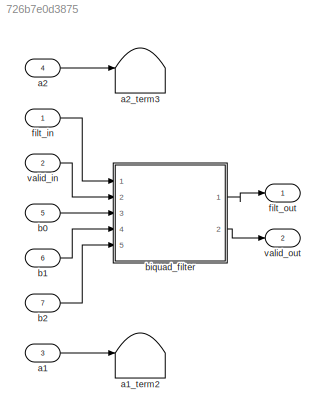
MODEL slx_726b7e0d3875
KIND model
CONFIG AbsTol = auto
CONFIG EnableMultiTasking = off
CONFIG FixedStep = auto
CONFIG MaxStep = auto
CONFIG MinStep = auto
CONFIG PreLoadFcn = addpath('<userpath>\Documents\MATLAB\hdlimport\biquad_filter');\n
CONFIG RelTol = 1e-3
CONFIG SampleTimeConstraint = Unconstrained
CONFIG SolverName = FixedStepDiscrete
CONFIG StartTime = 0.0
CONFIG StopTime = 10.0
BLOCK [Inport] a1
  OutDataTypeStr = uint16
  Port = 3
  SampleTime = -1
BLOCK [Terminator] a1_term2
BLOCK [Inport] a2
  OutDataTypeStr = uint16
  Port = 4
  SampleTime = -1
BLOCK [Terminator] a2_term3
BLOCK [Inport] b0
  OutDataTypeStr = uint16
  Port = 5
  SampleTime = -1
BLOCK [Inport] b1
  OutDataTypeStr = uint16
  Port = 6
  SampleTime = -1
BLOCK [Inport] b2
  OutDataTypeStr = uint16
  Port = 7
  SampleTime = -1
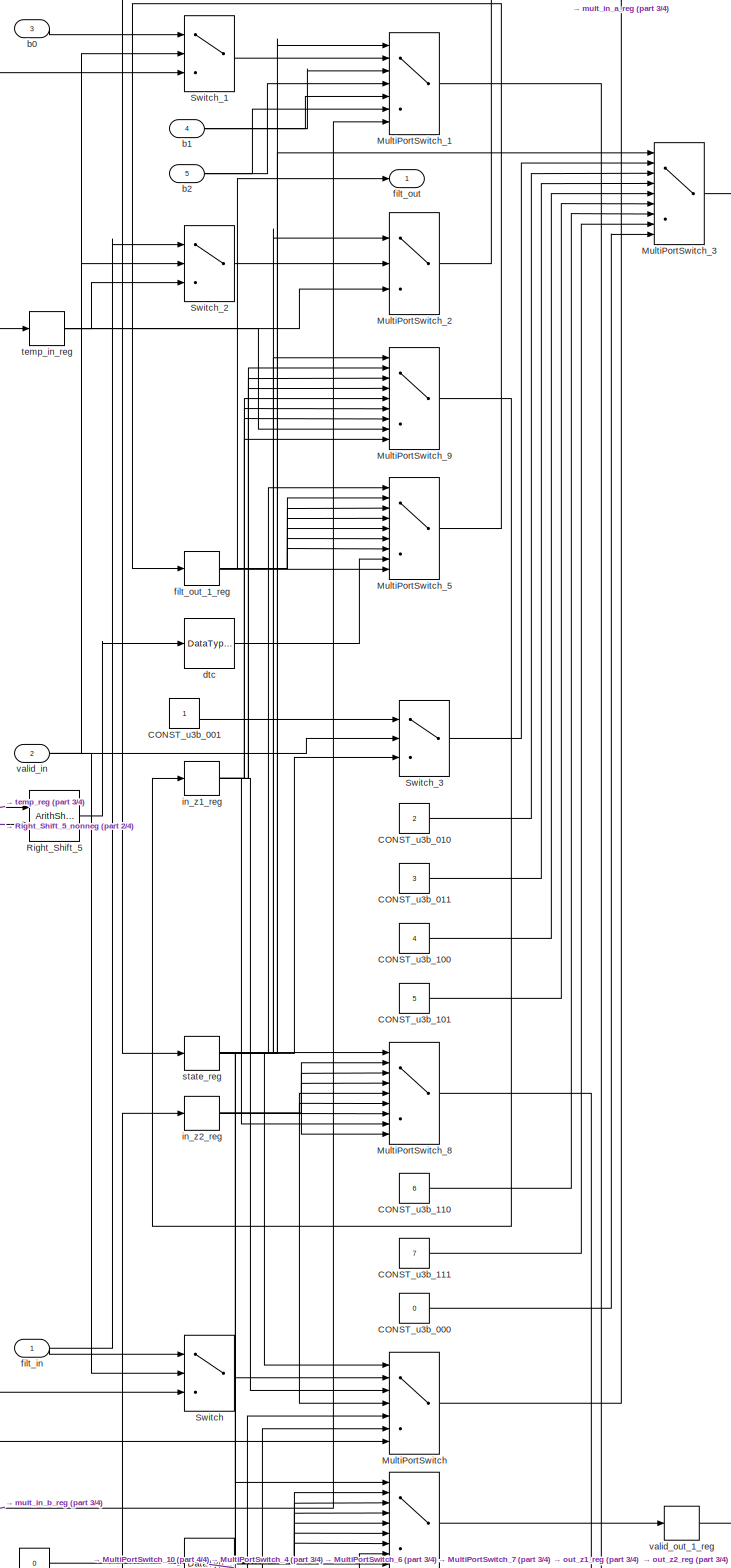
[diagram: biquad_filter - part 1/4, top center region]
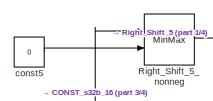
[diagram: biquad_filter - part 2/4, middle left region]
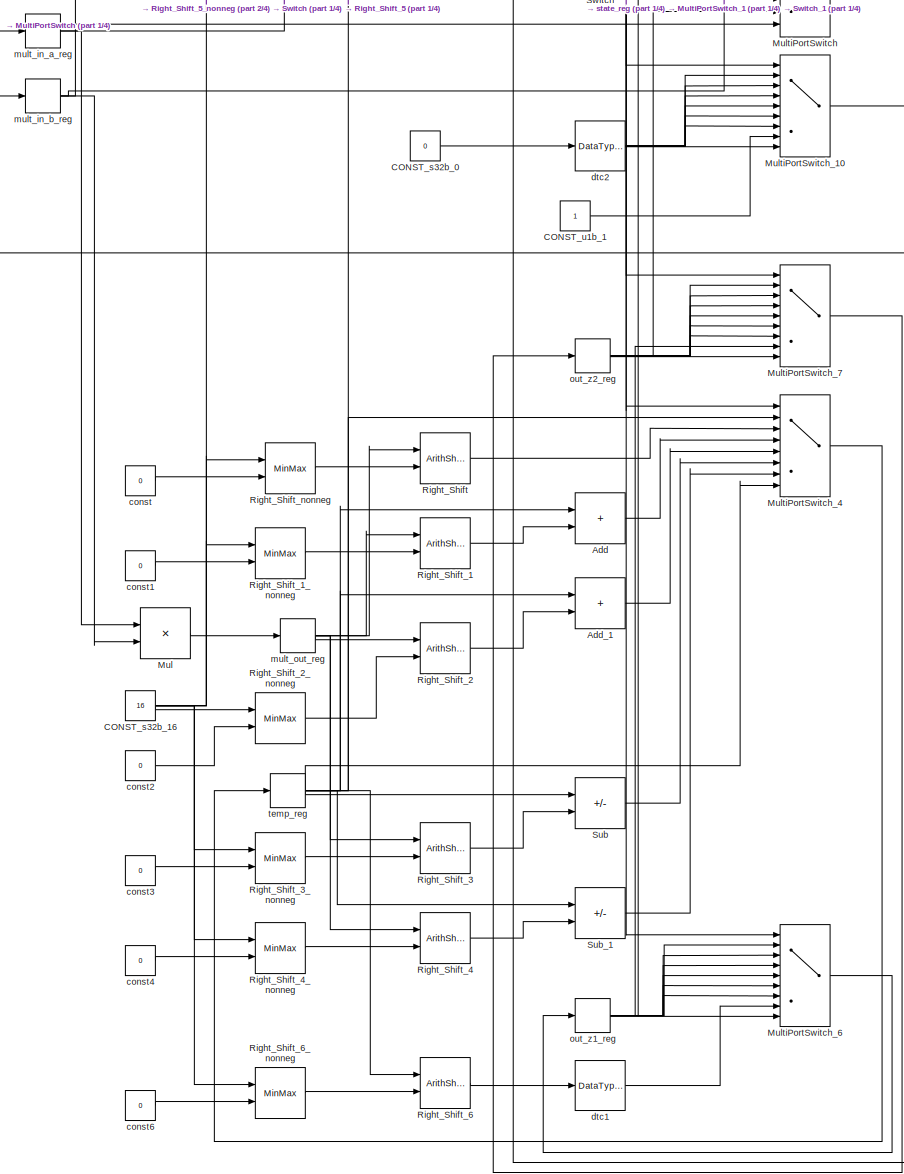
[diagram: biquad_filter - part 3/4, bottom center region]
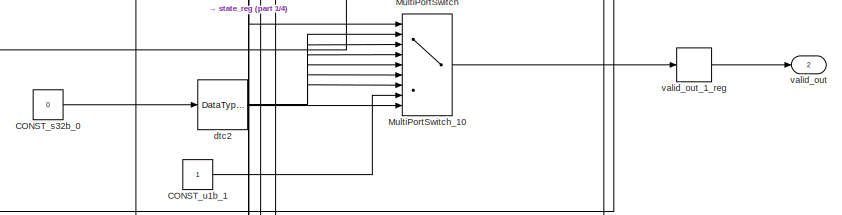
[diagram: biquad_filter - part 4/4, central region]
BLOCK [SubSystem] biquad_filter
  Ports = [5, 2]
  RequestExecContextInheritance = off
BLOCK [Sum] biquad_filter/Add
  AccumDataTypeStr = uint32
  IconShape = rectangular
  OutDataTypeStr = uint32
  Ports = [2, 1]
  SampleTime = -1
BLOCK [Sum] biquad_filter/Add_1
  AccumDataTypeStr = uint32
  IconShape = rectangular
  OutDataTypeStr = uint32
  Ports = [2, 1]
  SampleTime = -1
BLOCK [Constant] biquad_filter/CONST_s32b_0
  OutDataTypeStr = int32
  SampleTime = -1
  Value = 0
BLOCK [Constant] biquad_filter/CONST_s32b_16
  OutDataTypeStr = int32
  SampleTime = -1
  Value = 16
BLOCK [Constant] biquad_filter/CONST_u1b_1
  OutDataTypeStr = fixdt(0, 1, 0)
  SampleTime = -1
BLOCK [Constant] biquad_filter/CONST_u3b_000
  OutDataTypeStr = fixdt(0, 3, 0)
  SampleTime = -1
  Value = 0
BLOCK [Constant] biquad_filter/CONST_u3b_001
  OutDataTypeStr = fixdt(0, 3, 0)
  SampleTime = -1
BLOCK [Constant] biquad_filter/CONST_u3b_010
  OutDataTypeStr = fixdt(0, 3, 0)
  SampleTime = -1
  Value = 2
BLOCK [Constant] biquad_filter/CONST_u3b_011
  OutDataTypeStr = fixdt(0, 3, 0)
  SampleTime = -1
  Value = 3
BLOCK [Constant] biquad_filter/CONST_u3b_100
  OutDataTypeStr = fixdt(0, 3, 0)
  SampleTime = -1
  Value = 4
BLOCK [Constant] biquad_filter/CONST_u3b_101
  OutDataTypeStr = fixdt(0, 3, 0)
  SampleTime = -1
  Value = 5
BLOCK [Constant] biquad_filter/CONST_u3b_110
  OutDataTypeStr = fixdt(0, 3, 0)
  SampleTime = -1
  Value = 6
BLOCK [Constant] biquad_filter/CONST_u3b_111
  OutDataTypeStr = fixdt(0, 3, 0)
  SampleTime = -1
  Value = 7
BLOCK [Product] biquad_filter/Mul
  Inputs = **
  OutDataTypeStr = uint32
  Ports = [2, 1]
  SampleTime = -1
BLOCK [MultiPortSwitch] biquad_filter/MultiPortSwitch
  DataPortOrder = Zero-based contiguous
  DiagnosticForDefault = None
  InputSameDT = off
  Inputs = 6
  OutDataTypeStr = uint16
  Ports = [7, 1]
  SampleTime = -1
  SaturateOnIntegerOverflow = off
  zeroidx = on
BLOCK [MultiPortSwitch] biquad_filter/MultiPortSwitch_1
  DataPortOrder = Zero-based contiguous
  DiagnosticForDefault = None
  InputSameDT = off
  Inputs = 6
  OutDataTypeStr = uint16
  Ports = [7, 1]
  SampleTime = -1
  SaturateOnIntegerOverflow = off
  zeroidx = on
BLOCK [MultiPortSwitch] biquad_filter/MultiPortSwitch_10
  DataPortOrder = Zero-based contiguous
  DiagnosticForDefault = None
  InputSameDT = off
  Inputs = 8
  OutDataTypeStr = fixdt(0, 1, 0)
  Ports = [9, 1]
  SampleTime = -1
  SaturateOnIntegerOverflow = off
  zeroidx = on
BLOCK [MultiPortSwitch] biquad_filter/MultiPortSwitch_2
  DataPortOrder = Zero-based contiguous
  DiagnosticForDefault = None
  InputSameDT = off
  Inputs = 2
  OutDataTypeStr = uint16
  Ports = [3, 1]
  SampleTime = -1
  SaturateOnIntegerOverflow = off
  zeroidx = on
BLOCK [MultiPortSwitch] biquad_filter/MultiPortSwitch_3
  DataPortOrder = Zero-based contiguous
  DiagnosticForDefault = None
  InputSameDT = off
  Inputs = 8
  OutDataTypeStr = fixdt(0, 3, 0)
  Ports = [9, 1]
  SampleTime = -1
  SaturateOnIntegerOverflow = off
  zeroidx = on
BLOCK [MultiPortSwitch] biquad_filter/MultiPortSwitch_4
  DataPortOrder = Zero-based contiguous
  DiagnosticForDefault = None
  InputSameDT = off
  Inputs = 7
  OutDataTypeStr = uint32
  Ports = [8, 1]
  SampleTime = -1
  SaturateOnIntegerOverflow = off
  zeroidx = on
BLOCK [MultiPortSwitch] biquad_filter/MultiPortSwitch_5
  DataPortOrder = Zero-based contiguous
  DiagnosticForDefault = None
  InputSameDT = off
  Inputs = 8
  OutDataTypeStr = uint16
  Ports = [9, 1]
  SampleTime = -1
  SaturateOnIntegerOverflow = off
  zeroidx = on
BLOCK [MultiPortSwitch] biquad_filter/MultiPortSwitch_6
  DataPortOrder = Zero-based contiguous
  DiagnosticForDefault = None
  InputSameDT = off
  Inputs = 8
  OutDataTypeStr = uint16
  Ports = [9, 1]
  SampleTime = -1
  SaturateOnIntegerOverflow = off
  zeroidx = on
BLOCK [MultiPortSwitch] biquad_filter/MultiPortSwitch_7
  DataPortOrder = Zero-based contiguous
  DiagnosticForDefault = None
  InputSameDT = off
  Inputs = 8
  OutDataTypeStr = uint16
  Ports = [9, 1]
  SampleTime = -1
  SaturateOnIntegerOverflow = off
  zeroidx = on
BLOCK [MultiPortSwitch] biquad_filter/MultiPortSwitch_8
  DataPortOrder = Zero-based contiguous
  DiagnosticForDefault = None
  InputSameDT = off
  Inputs = 8
  OutDataTypeStr = uint16
  Ports = [9, 1]
  SampleTime = -1
  SaturateOnIntegerOverflow = off
  zeroidx = on
BLOCK [MultiPortSwitch] biquad_filter/MultiPortSwitch_9
  DataPortOrder = Zero-based contiguous
  DiagnosticForDefault = None
  InputSameDT = off
  Inputs = 8
  OutDataTypeStr = uint16
  Ports = [9, 1]
  SampleTime = -1
  SaturateOnIntegerOverflow = off
  zeroidx = on
BLOCK [ArithShift] biquad_filter/Right_Shift
  BitShiftDirection = Right
  BitShiftNumberSource = Input port
  InputPortMap = u0,p1
  Ports = [2, 1]
BLOCK [ArithShift] biquad_filter/Right_Shift_1
  BitShiftDirection = Right
  BitShiftNumberSource = Input port
  InputPortMap = u0,p1
  Ports = [2, 1]
BLOCK [MinMax] biquad_filter/Right_Shift_1_nonneg
  Function = max
  Inputs = 2
  Ports = [2, 1]
BLOCK [ArithShift] biquad_filter/Right_Shift_2
  BitShiftDirection = Right
  BitShiftNumberSource = Input port
  InputPortMap = u0,p1
  Ports = [2, 1]
BLOCK [MinMax] biquad_filter/Right_Shift_2_nonneg
  Function = max
  Inputs = 2
  Ports = [2, 1]
BLOCK [ArithShift] biquad_filter/Right_Shift_3
  BitShiftDirection = Right
  BitShiftNumberSource = Input port
  InputPortMap = u0,p1
  Ports = [2, 1]
BLOCK [MinMax] biquad_filter/Right_Shift_3_nonneg
  Function = max
  Inputs = 2
  Ports = [2, 1]
BLOCK [ArithShift] biquad_filter/Right_Shift_4
  BitShiftDirection = Right
  BitShiftNumberSource = Input port
  InputPortMap = u0,p1
  Ports = [2, 1]
BLOCK [MinMax] biquad_filter/Right_Shift_4_nonneg
  Function = max
  Inputs = 2
  Ports = [2, 1]
BLOCK [ArithShift] biquad_filter/Right_Shift_5
  BitShiftDirection = Right
  BitShiftNumberSource = Input port
  InputPortMap = u0,p1
  Ports = [2, 1]
BLOCK [MinMax] biquad_filter/Right_Shift_5_nonneg
  Function = max
  Inputs = 2
  Ports = [2, 1]
BLOCK [ArithShift] biquad_filter/Right_Shift_6
  BitShiftDirection = Right
  BitShiftNumberSource = Input port
  InputPortMap = u0,p1
  Ports = [2, 1]
BLOCK [MinMax] biquad_filter/Right_Shift_6_nonneg
  Function = max
  Inputs = 2
  Ports = [2, 1]
BLOCK [MinMax] biquad_filter/Right_Shift_nonneg
  Function = max
  Inputs = 2
  Ports = [2, 1]
BLOCK [Sum] biquad_filter/Sub
  AccumDataTypeStr = uint32
  IconShape = rectangular
  Inputs = +-
  OutDataTypeStr = uint32
  Ports = [2, 1]
  SampleTime = -1
BLOCK [Sum] biquad_filter/Sub_1
  AccumDataTypeStr = uint32
  IconShape = rectangular
  Inputs = +-
  OutDataTypeStr = uint32
  Ports = [2, 1]
  SampleTime = -1
BLOCK [Switch] biquad_filter/Switch
  Criteria = u2 ~= 0
  InputSameDT = off
  OutDataTypeStr = uint16
  SampleTime = -1
  SaturateOnIntegerOverflow = off
  Threshold = double(0)
BLOCK [Switch] biquad_filter/Switch_1
  Criteria = u2 ~= 0
  InputSameDT = off
  OutDataTypeStr = uint16
  SampleTime = -1
  SaturateOnIntegerOverflow = off
  Threshold = double(0)
BLOCK [Switch] biquad_filter/Switch_2
  Criteria = u2 ~= 0
  InputSameDT = off
  OutDataTypeStr = uint16
  SampleTime = -1
  SaturateOnIntegerOverflow = off
  Threshold = double(0)
BLOCK [Switch] biquad_filter/Switch_3
  Criteria = u2 ~= 0
  InputSameDT = off
  OutDataTypeStr = fixdt(0, 3, 0)
  SampleTime = -1
  SaturateOnIntegerOverflow = off
  Threshold = double(0)
BLOCK [Inport] biquad_filter/b0
  OutDataTypeStr = uint16
  Port = 3
  SampleTime = -1
BLOCK [Inport] biquad_filter/b1
  OutDataTypeStr = uint16
  Port = 4
  SampleTime = -1
BLOCK [Inport] biquad_filter/b2
  OutDataTypeStr = uint16
  Port = 5
  SampleTime = -1
BLOCK [Constant] biquad_filter/const
  OutDataTypeStr = int32
  SampleTime = -1
  Value = 0
BLOCK [Constant] biquad_filter/const1
  OutDataTypeStr = int32
  SampleTime = -1
  Value = 0
BLOCK [Constant] biquad_filter/const2
  OutDataTypeStr = int32
  SampleTime = -1
  Value = 0
BLOCK [Constant] biquad_filter/const3
  OutDataTypeStr = int32
  SampleTime = -1
  Value = 0
BLOCK [Constant] biquad_filter/const4
  OutDataTypeStr = int32
  SampleTime = -1
  Value = 0
BLOCK [Constant] biquad_filter/const5
  OutDataTypeStr = int32
  SampleTime = -1
  Value = 0
BLOCK [Constant] biquad_filter/const6
  OutDataTypeStr = int32
  SampleTime = -1
  Value = 0
BLOCK [DataTypeConversion] biquad_filter/dtc
  OutDataTypeStr = uint16
  RndMeth = Floor
  SampleTime = -1
  SaturateOnIntegerOverflow = off
BLOCK [DataTypeConversion] biquad_filter/dtc1
  OutDataTypeStr = uint16
  RndMeth = Floor
  SampleTime = -1
  SaturateOnIntegerOverflow = off
BLOCK [DataTypeConversion] biquad_filter/dtc2
  OutDataTypeStr = fixdt(0, 1, 0)
  RndMeth = Floor
  SampleTime = -1
  SaturateOnIntegerOverflow = off
BLOCK [Inport] biquad_filter/filt_in
  OutDataTypeStr = uint16
  SampleTime = -1
BLOCK [Outport] biquad_filter/filt_out
  OutDataTypeStr = uint16
  SampleTime = -1
BLOCK [Delay] biquad_filter/filt_out_1_reg
  DelayLength = double(1)
  InitialCondition = 0
  InputPortMap = u0
  Ports = [1, 1]
  SampleTime = -1
BLOCK [Delay] biquad_filter/in_z1_reg
  DelayLength = double(1)
  InitialCondition = 0
  InputPortMap = u0
  Ports = [1, 1]
  SampleTime = -1
BLOCK [Delay] biquad_filter/in_z2_reg
  DelayLength = double(1)
  InitialCondition = 0
  InputPortMap = u0
  Ports = [1, 1]
  SampleTime = -1
BLOCK [Delay] biquad_filter/mult_in_a_reg
  DelayLength = double(1)
  InitialCondition = 0
  InputPortMap = u0
  Ports = [1, 1]
  SampleTime = -1
BLOCK [Delay] biquad_filter/mult_in_b_reg
  DelayLength = double(1)
  InitialCondition = 0
  InputPortMap = u0
  Ports = [1, 1]
  SampleTime = -1
BLOCK [Delay] biquad_filter/mult_out_reg
  DelayLength = double(1)
  InitialCondition = 0
  InputPortMap = u0
  Ports = [1, 1]
  SampleTime = -1
BLOCK [Delay] biquad_filter/out_z1_reg
  DelayLength = double(1)
  InitialCondition = 0
  InputPortMap = u0
  Ports = [1, 1]
  SampleTime = -1
BLOCK [Delay] biquad_filter/out_z2_reg
  DelayLength = double(1)
  InitialCondition = 0
  InputPortMap = u0
  Ports = [1, 1]
  SampleTime = -1
BLOCK [Delay] biquad_filter/state_reg
  DelayLength = double(1)
  InitialCondition = 0
  InputPortMap = u0
  Ports = [1, 1]
  SampleTime = -1
BLOCK [Delay] biquad_filter/temp_in_reg
  DelayLength = double(1)
  InitialCondition = 0
  InputPortMap = u0
  Ports = [1, 1]
  SampleTime = -1
BLOCK [Delay] biquad_filter/temp_reg
  DelayLength = double(1)
  InitialCondition = 0
  InputPortMap = u0
  Ports = [1, 1]
  SampleTime = -1
BLOCK [Inport] biquad_filter/valid_in
  OutDataTypeStr = fixdt(0, 1, 0)
  Port = 2
  SampleTime = -1
BLOCK [Outport] biquad_filter/valid_out
  OutDataTypeStr = fixdt(0, 1, 0)
  Port = 2
  SampleTime = -1
BLOCK [Delay] biquad_filter/valid_out_1_reg
  DelayLength = double(1)
  InitialCondition = 0
  InputPortMap = u0
  Ports = [1, 1]
  SampleTime = -1
BLOCK [Inport] filt_in
  OutDataTypeStr = uint16
  SampleTime = -1
BLOCK [Outport] filt_out
  OutDataTypeStr = uint16
  SampleTime = -1
BLOCK [Inport] valid_in
  OutDataTypeStr = fixdt(0, 1, 0)
  Port = 2
  SampleTime = -1
BLOCK [Outport] valid_out
  OutDataTypeStr = fixdt(0, 1, 0)
  Port = 2
  SampleTime = -1
LINE a1:1 -> a1_term2:1
LINE a2:1 -> a2_term3:1
LINE b0:1 -> biquad_filter:3
LINE b1:1 -> biquad_filter:4
LINE b2:1 -> biquad_filter:5
LINE biquad_filter/Add:1 -> biquad_filter/MultiPortSwitch_4:4
LINE biquad_filter/Add_1:1 -> biquad_filter/MultiPortSwitch_4:5
LINE biquad_filter/CONST_s32b_0:1 -> biquad_filter/dtc2:1
NET biquad_filter/CONST_s32b_16:1 -> biquad_filter/Right_Shift_1_nonneg:1, biquad_filter/Right_Shift_2_nonneg:1, biquad_filter/Right_Shift_3_nonneg:1, biquad_filter/Right_Shift_4_nonneg:1, biquad_filter/Right_Shift_5_nonneg:1, biquad_filter/Right_Shift_6_nonneg:1, biquad_filter/Right_Shift_nonneg:1
LINE biquad_filter/CONST_u1b_1:1 -> biquad_filter/MultiPortSwitch_10:8
LINE biquad_filter/CONST_u3b_000:1 -> biquad_filter/MultiPortSwitch_3:9
LINE biquad_filter/CONST_u3b_001:1 -> biquad_filter/Switch_3:1
LINE biquad_filter/CONST_u3b_010:1 -> biquad_filter/MultiPortSwitch_3:3
LINE biquad_filter/CONST_u3b_011:1 -> biquad_filter/MultiPortSwitch_3:4
LINE biquad_filter/CONST_u3b_100:1 -> biquad_filter/MultiPortSwitch_3:5
LINE biquad_filter/CONST_u3b_101:1 -> biquad_filter/MultiPortSwitch_3:6
LINE biquad_filter/CONST_u3b_110:1 -> biquad_filter/MultiPortSwitch_3:7
LINE biquad_filter/CONST_u3b_111:1 -> biquad_filter/MultiPortSwitch_3:8
LINE biquad_filter/Mul:1 -> biquad_filter/mult_out_reg:1
LINE biquad_filter/MultiPortSwitch:1 -> biquad_filter/mult_in_a_reg:1
LINE biquad_filter/MultiPortSwitch_10:1 -> biquad_filter/valid_out_1_reg:1
LINE biquad_filter/MultiPortSwitch_1:1 -> biquad_filter/mult_in_b_reg:1
LINE biquad_filter/MultiPortSwitch_2:1 -> biquad_filter/temp_in_reg:1
LINE biquad_filter/MultiPortSwitch_3:1 -> biquad_filter/state_reg:1
LINE biquad_filter/MultiPortSwitch_4:1 -> biquad_filter/temp_reg:1
LINE biquad_filter/MultiPortSwitch_5:1 -> biquad_filter/filt_out_1_reg:1
LINE biquad_filter/MultiPortSwitch_6:1 -> biquad_filter/out_z1_reg:1
LINE biquad_filter/MultiPortSwitch_7:1 -> biquad_filter/out_z2_reg:1
LINE biquad_filter/MultiPortSwitch_8:1 -> biquad_filter/in_z2_reg:1
LINE biquad_filter/MultiPortSwitch_9:1 -> biquad_filter/in_z1_reg:1
LINE biquad_filter/Right_Shift:1 -> biquad_filter/MultiPortSwitch_4:3
LINE biquad_filter/Right_Shift_1:1 -> biquad_filter/Add:2
LINE biquad_filter/Right_Shift_1_nonneg:1 -> biquad_filter/Right_Shift_1:2
LINE biquad_filter/Right_Shift_2:1 -> biquad_filter/Add_1:2
LINE biquad_filter/Right_Shift_2_nonneg:1 -> biquad_filter/Right_Shift_2:2
LINE biquad_filter/Right_Shift_3:1 -> biquad_filter/Sub:2
LINE biquad_filter/Right_Shift_3_nonneg:1 -> biquad_filter/Right_Shift_3:2
LINE biquad_filter/Right_Shift_4:1 -> biquad_filter/Sub_1:2
LINE biquad_filter/Right_Shift_4_nonneg:1 -> biquad_filter/Right_Shift_4:2
LINE biquad_filter/Right_Shift_5:1 -> biquad_filter/dtc:1
LINE biquad_filter/Right_Shift_5_nonneg:1 -> biquad_filter/Right_Shift_5:2
LINE biquad_filter/Right_Shift_6:1 -> biquad_filter/dtc1:1
LINE biquad_filter/Right_Shift_6_nonneg:1 -> biquad_filter/Right_Shift_6:2
LINE biquad_filter/Right_Shift_nonneg:1 -> biquad_filter/Right_Shift:2
LINE biquad_filter/Sub:1 -> biquad_filter/MultiPortSwitch_4:6
LINE biquad_filter/Sub_1:1 -> biquad_filter/MultiPortSwitch_4:7
LINE biquad_filter/Switch:1 -> biquad_filter/MultiPortSwitch:2
LINE biquad_filter/Switch_1:1 -> biquad_filter/MultiPortSwitch_1:2
LINE biquad_filter/Switch_2:1 -> biquad_filter/MultiPortSwitch_2:2
LINE biquad_filter/Switch_3:1 -> biquad_filter/MultiPortSwitch_3:2
LINE biquad_filter/b0:1 -> biquad_filter/Switch_1:1
NET biquad_filter/b1:1 -> biquad_filter/MultiPortSwitch_1:3, biquad_filter/MultiPortSwitch_1:5
NET biquad_filter/b2:1 -> biquad_filter/MultiPortSwitch_1:4, biquad_filter/MultiPortSwitch_1:6
LINE biquad_filter/const1:1 -> biquad_filter/Right_Shift_1_nonneg:2
LINE biquad_filter/const2:1 -> biquad_filter/Right_Shift_2_nonneg:2
LINE biquad_filter/const3:1 -> biquad_filter/Right_Shift_3_nonneg:2
LINE biquad_filter/const4:1 -> biquad_filter/Right_Shift_4_nonneg:2
LINE biquad_filter/const5:1 -> biquad_filter/Right_Shift_5_nonneg:2
LINE biquad_filter/const6:1 -> biquad_filter/Right_Shift_6_nonneg:2
LINE biquad_filter/const:1 -> biquad_filter/Right_Shift_nonneg:2
LINE biquad_filter/dtc1:1 -> biquad_filter/MultiPortSwitch_6:8
NET biquad_filter/dtc2:1 -> biquad_filter/MultiPortSwitch_10:2, biquad_filter/MultiPortSwitch_10:3, biquad_filter/MultiPortSwitch_10:4, biquad_filter/MultiPortSwitch_10:5, biquad_filter/MultiPortSwitch_10:6, biquad_filter/MultiPortSwitch_10:7, biquad_filter/MultiPortSwitch_10:9
LINE biquad_filter/dtc:1 -> biquad_filter/MultiPortSwitch_5:8
NET biquad_filter/filt_in:1 -> biquad_filter/Switch:1, biquad_filter/Switch_2:1
NET biquad_filter/filt_out_1_reg:1 -> biquad_filter/MultiPortSwitch_5:2, biquad_filter/MultiPortSwitch_5:3, biquad_filter/MultiPortSwitch_5:4, biquad_filter/MultiPortSwitch_5:5, biquad_filter/MultiPortSwitch_5:6, biquad_filter/MultiPortSwitch_5:7, biquad_filter/MultiPortSwitch_5:9, biquad_filter/filt_out:1
NET biquad_filter/in_z1_reg:1 -> biquad_filter/MultiPortSwitch:3, biquad_filter/MultiPortSwitch_8:8, biquad_filter/MultiPortSwitch_9:2, biquad_filter/MultiPortSwitch_9:3, biquad_filter/MultiPortSwitch_9:4, biquad_filter/MultiPortSwitch_9:5, biquad_filter/MultiPortSwitch_9:6, biquad_filter/MultiPortSwitch_9:7, biquad_filter/MultiPortSwitch_9:9
NET biquad_filter/in_z2_reg:1 -> biquad_filter/MultiPortSwitch:4, biquad_filter/MultiPortSwitch_8:2, biquad_filter/MultiPortSwitch_8:3, biquad_filter/MultiPortSwitch_8:4, biquad_filter/MultiPortSwitch_8:5, biquad_filter/MultiPortSwitch_8:6, biquad_filter/MultiPortSwitch_8:7, biquad_filter/MultiPortSwitch_8:9
NET biquad_filter/mult_in_a_reg:1 -> biquad_filter/Mul:1, biquad_filter/MultiPortSwitch:7, biquad_filter/Switch:3
NET biquad_filter/mult_in_b_reg:1 -> biquad_filter/Mul:2, biquad_filter/MultiPortSwitch_1:7, biquad_filter/Switch_1:3
NET biquad_filter/mult_out_reg:1 -> biquad_filter/Right_Shift:1, biquad_filter/Right_Shift_1:1, biquad_filter/Right_Shift_2:1, biquad_filter/Right_Shift_3:1, biquad_filter/Right_Shift_4:1
NET biquad_filter/out_z1_reg:1 -> biquad_filter/MultiPortSwitch:5, biquad_filter/MultiPortSwitch_6:2, biquad_filter/MultiPortSwitch_6:3, biquad_filter/MultiPortSwitch_6:4, biquad_filter/MultiPortSwitch_6:5, biquad_filter/MultiPortSwitch_6:6, biquad_filter/MultiPortSwitch_6:7, biquad_filter/MultiPortSwitch_6:9, biquad_filter/MultiPortSwitch_7:8
NET biquad_filter/out_z2_reg:1 -> biquad_filter/MultiPortSwitch:6, biquad_filter/MultiPortSwitch_7:2, biquad_filter/MultiPortSwitch_7:3, biquad_filter/MultiPortSwitch_7:4, biquad_filter/MultiPortSwitch_7:5, biquad_filter/MultiPortSwitch_7:6, biquad_filter/MultiPortSwitch_7:7, biquad_filter/MultiPortSwitch_7:9
NET biquad_filter/state_reg:1 -> biquad_filter/MultiPortSwitch:1, biquad_filter/MultiPortSwitch_10:1, biquad_filter/MultiPortSwitch_1:1, biquad_filter/MultiPortSwitch_2:1, biquad_filter/MultiPortSwitch_3:1, biquad_filter/MultiPortSwitch_4:1, biquad_filter/MultiPortSwitch_5:1, biquad_filter/MultiPortSwitch_6:1, biquad_filter/MultiPortSwitch_7:1, biquad_filter/MultiPortSwitch_8:1, biquad_filter/MultiPortSwitch_9:1, biquad_filter/Switch_3:3
NET biquad_filter/temp_in_reg:1 -> biquad_filter/MultiPortSwitch_2:3, biquad_filter/MultiPortSwitch_9:8, biquad_filter/Switch_2:3
NET biquad_filter/temp_reg:1 -> biquad_filter/Add:1, biquad_filter/Add_1:1, biquad_filter/MultiPortSwitch_4:2, biquad_filter/MultiPortSwitch_4:8, biquad_filter/Right_Shift_5:1, biquad_filter/Right_Shift_6:1, biquad_filter/Sub:1, biquad_filter/Sub_1:1
NET biquad_filter/valid_in:1 -> biquad_filter/Switch:2, biquad_filter/Switch_1:2, biquad_filter/Switch_2:2, biquad_filter/Switch_3:2
LINE biquad_filter/valid_out_1_reg:1 -> biquad_filter/valid_out:1
LINE biquad_filter:1 -> filt_out:1
LINE biquad_filter:2 -> valid_out:1
LINE filt_in:1 -> biquad_filter:1
LINE valid_in:1 -> biquad_filter:2
note: NET lines group one-source signal fan-out (src -> all destinations, sorted); 1:1 wires keep LINE
